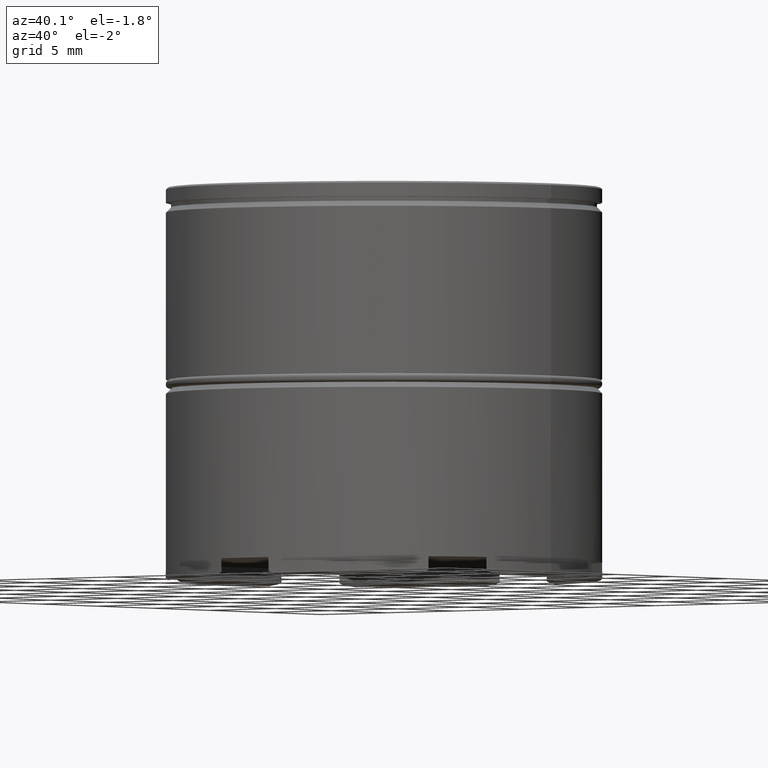
[diagram: clean part render]
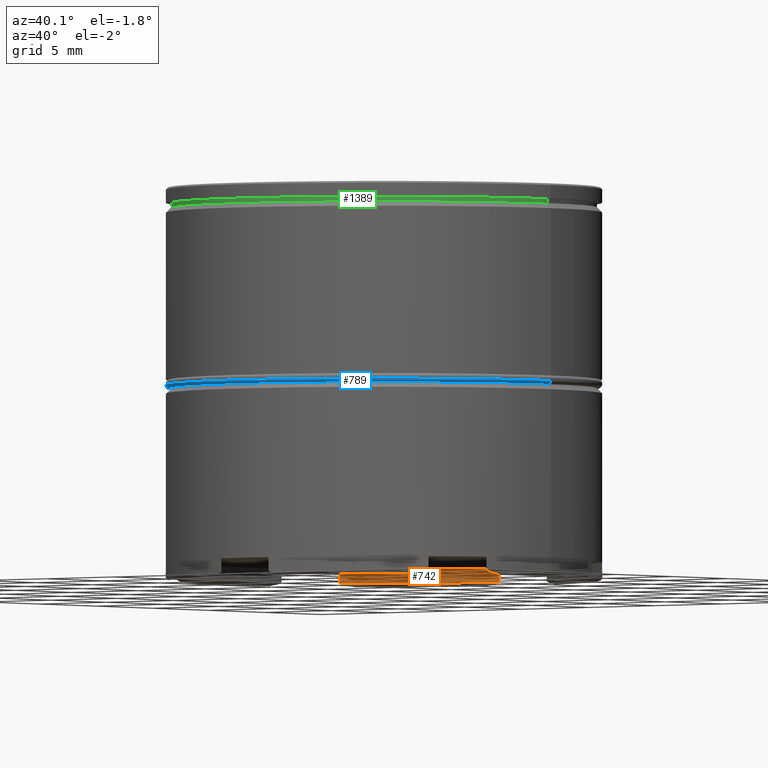
[diagram: same view with three faces highlighted in distinct colors, each labeled with its STEP entity id]
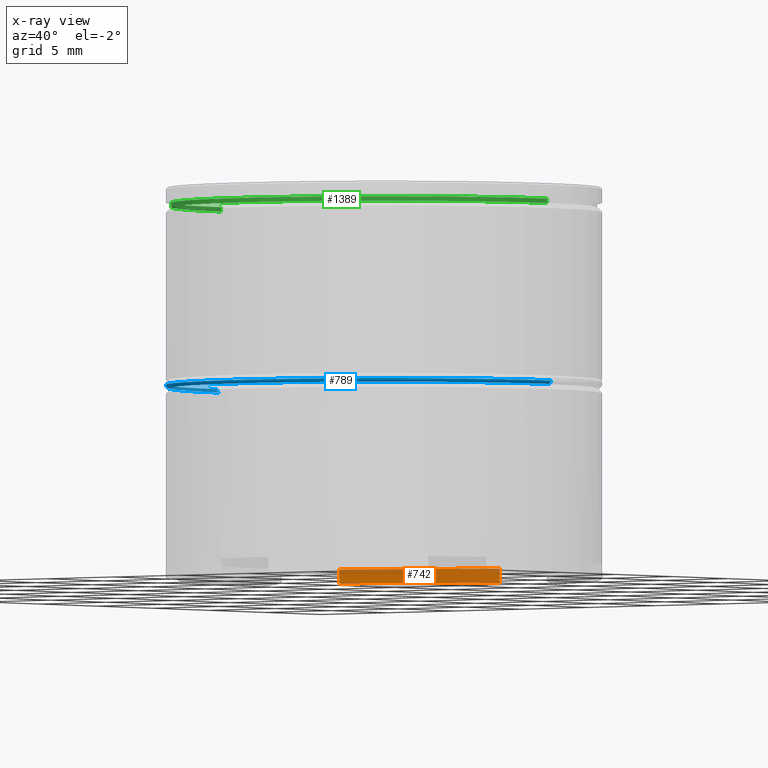
[diagram: x-ray of the same camera — body ghosted, the three highlighted faces saturated]
A machine part, auxiliary view with three faces highlighted in distinct colors.
The next image is the same camera in x-ray (body ghosted, the three faces saturated) — at least one of them is partly hidden behind the body in this view.
Their STEP definitions:

[orange] entity #742 — the highlighted planar face has unit normal (-0.5, 0.866, 0).
#155 = CARTESIAN_POINT ( 'NONE',  ( -11.60000000000000675, 6.697263122599663276, -21.50000000000000000 ) ) ;
#255 = VERTEX_POINT ( 'NONE', #605 ) ;
#281 = CARTESIAN_POINT ( 'NONE',  ( -9.833298897924620974, 7.717268479460495101, 0.000000000000000000 ) ) ;
#359 = CARTESIAN_POINT ( 'NONE',  ( -1.766701102075377561, 12.37452088833849295, 0.000000000000000000 ) ) ;
#436 = CARTESIAN_POINT ( 'NONE',  ( -1.766701102075377561, 12.37452088833849295, -21.50000000000000000 ) ) ;
#460 = VECTOR ( 'NONE', #1179, 1000.000000000000000 ) ;
#468 = PLANE ( 'NONE',  #1329 ) ;
#505 = EDGE_CURVE ( 'NONE', #255, #1462, #1492, .T. ) ;
#566 = VECTOR ( 'NONE', #866, 1000.000000000000000 ) ;
#585 = CARTESIAN_POINT ( 'NONE',  ( -11.60000000000000675, 6.697263122599663276, -21.50000000000000000 ) ) ;
#605 = CARTESIAN_POINT ( 'NONE',  ( -1.766701102075377561, 12.37452088833849295, -22.29999999999999361 ) ) ;
#647 = ORIENTED_EDGE ( 'NONE', *, *, #798, .F. ) ;
#673 = VECTOR ( 'NONE', #1039, 1000.000000000000000 ) ;
#682 = EDGE_LOOP ( 'NONE', ( #819, #972, #1353, #647 ) ) ;
#742 = ADVANCED_FACE ( 'NONE', ( #982 ), #468, .F. ) ;
#798 = EDGE_CURVE ( 'NONE', #1340, #1462, #989, .T. ) ;
#814 = EDGE_CURVE ( 'NONE', #1340, #1302, #1569, .T. ) ;
#819 = ORIENTED_EDGE ( 'NONE', *, *, #814, .T. ) ;
#866 = DIRECTION ( 'NONE',  ( -0.000000000000000000, -0.000000000000000000, 1.000000000000000000 ) ) ;
#892 = CARTESIAN_POINT ( 'NONE',  ( -9.833298897924620974, 7.717268479460495101, -21.50000000000000000 ) ) ;
#972 = ORIENTED_EDGE ( 'NONE', *, *, #1207, .T. ) ;
#980 = LINE ( 'NONE', #1097, #1047 ) ;
#982 = FACE_OUTER_BOUND ( 'NONE', #682, .T. ) ;
#989 = LINE ( 'NONE', #155, #460 ) ;
#1039 = DIRECTION ( 'NONE',  ( 0.000000000000000000, 0.000000000000000000, -1.000000000000000000 ) ) ;
#1047 = VECTOR ( 'NONE', #1115, 1000.000000000000000 ) ;
#1097 = CARTESIAN_POINT ( 'NONE',  ( -2.005266807797945638, 12.23678491392015566, -22.29999999999999361 ) ) ;
#1115 = DIRECTION ( 'NONE',  ( 0.8660254037844388186, 0.4999999999999996669, 0.000000000000000000 ) ) ;
#1179 = DIRECTION ( 'NONE',  ( 0.8660254037844388186, 0.4999999999999997224, 0.000000000000000000 ) ) ;
#1207 = EDGE_CURVE ( 'NONE', #1302, #255, #980, .T. ) ;
#1302 = VERTEX_POINT ( 'NONE', #1393 ) ;
#1329 = AXIS2_PLACEMENT_3D ( 'NONE', #585, #1333, #1350 ) ;
#1333 = DIRECTION ( 'NONE',  ( -0.4999999999999996669, 0.8660254037844388186, 0.000000000000000000 ) ) ;
#1340 = VERTEX_POINT ( 'NONE', #892 ) ;
#1350 = DIRECTION ( 'NONE',  ( -0.8660254037844388186, -0.4999999999999996669, 0.000000000000000000 ) ) ;
#1353 = ORIENTED_EDGE ( 'NONE', *, *, #505, .T. ) ;
#1393 = CARTESIAN_POINT ( 'NONE',  ( -9.833298897924620974, 7.717268479460495101, -22.29999999999999361 ) ) ;
#1462 = VERTEX_POINT ( 'NONE', #436 ) ;
#1492 = LINE ( 'NONE', #359, #566 ) ;
#1569 = LINE ( 'NONE', #281, #673 ) ;

[blue] entity #789 — the highlighted toroidal blend (fillet) surface has major radius 12.3 mm and minor (blend) radius 0.2 mm.
#77 = CARTESIAN_POINT ( 'NONE',  ( 0.000000000000000000, 0.000000000000000000, -11.29999999999999716 ) ) ;
#96 = AXIS2_PLACEMENT_3D ( 'NONE', #1341, #995, #1354 ) ;
#100 = AXIS2_PLACEMENT_3D ( 'NONE', #587, #720, #1327 ) ;
#119 = CIRCLE ( 'NONE', #1601, 0.2000000000000005107 ) ;
#147 = DIRECTION ( 'NONE',  ( 0.000000000000000000, 0.000000000000000000, -1.000000000000000000 ) ) ;
#224 = CARTESIAN_POINT ( 'NONE',  ( 0.000000000000000000, 0.000000000000000000, -11.29999999999999716 ) ) ;
#298 = DIRECTION ( 'NONE',  ( 1.000000000000000000, 0.000000000000000000, 0.000000000000000000 ) ) ;
#312 = CARTESIAN_POINT ( 'NONE',  ( 12.30000000000000071, 0.000000000000000000, -11.49999999999999822 ) ) ;
#482 = VERTEX_POINT ( 'NONE', #492 ) ;
#492 = CARTESIAN_POINT ( 'NONE',  ( 12.50000000000000000, 0.000000000000000000, -11.29999999999999716 ) ) ;
#538 = AXIS2_PLACEMENT_3D ( 'NONE', #224, #551, #298 ) ;
#551 = DIRECTION ( 'NONE',  ( 0.000000000000000000, 0.000000000000000000, 1.000000000000000000 ) ) ;
#572 = CIRCLE ( 'NONE', #96, 0.2000000000000005107 ) ;
#582 = DIRECTION ( 'NONE',  ( 1.000000000000000000, 0.000000000000000000, 0.000000000000000000 ) ) ;
#587 = CARTESIAN_POINT ( 'NONE',  ( 0.000000000000000000, 0.000000000000000000, -11.49999999999999822 ) ) ;
#720 = DIRECTION ( 'NONE',  ( -0.000000000000000000, -0.000000000000000000, -1.000000000000000000 ) ) ;
#729 = ORIENTED_EDGE ( 'NONE', *, *, #1101, .F. ) ;
#789 = ADVANCED_FACE ( 'NONE', ( #1619 ), #1041, .T. ) ;
#816 = CARTESIAN_POINT ( 'NONE',  ( -12.30000000000000071, 1.518562030942717967E-15, -11.49999999999999822 ) ) ;
#829 = VERTEX_POINT ( 'NONE', #816 ) ;
#877 = ORIENTED_EDGE ( 'NONE', *, *, #881, .T. ) ;
#881 = EDGE_CURVE ( 'NONE', #1071, #482, #119, .T. ) ;
#934 = ORIENTED_EDGE ( 'NONE', *, *, #1079, .F. ) ;
#995 = DIRECTION ( 'NONE',  ( 1.224646799147353207E-16, 1.000000000000000000, -0.000000000000000000 ) ) ;
#1041 = TOROIDAL_SURFACE ( 'NONE', #538, 12.30000000000000071, 0.2000000000000000111 ) ;
#1071 = VERTEX_POINT ( 'NONE', #312 ) ;
#1079 = EDGE_CURVE ( 'NONE', #1279, #482, #1491, .T. ) ;
#1101 = EDGE_CURVE ( 'NONE', #829, #1279, #572, .T. ) ;
#1279 = VERTEX_POINT ( 'NONE', #1534 ) ;
#1309 = CIRCLE ( 'NONE', #100, 12.30000000000000071 ) ;
#1327 = DIRECTION ( 'NONE',  ( 1.000000000000000000, 0.000000000000000000, 0.000000000000000000 ) ) ;
#1341 = CARTESIAN_POINT ( 'NONE',  ( -12.30000000000000071, 1.506315562951244413E-15, -11.29999999999999716 ) ) ;
#1354 = DIRECTION ( 'NONE',  ( -1.000000000000000000, 1.224646799147353207E-16, 0.000000000000000000 ) ) ;
#1474 = EDGE_LOOP ( 'NONE', ( #729, #1618, #877, #934 ) ) ;
#1491 = CIRCLE ( 'NONE', #1577, 12.50000000000000000 ) ;
#1534 = CARTESIAN_POINT ( 'NONE',  ( -12.50000000000000000, 1.530808498934191521E-15, -11.29999999999999716 ) ) ;
#1541 = DIRECTION ( 'NONE',  ( 0.000000000000000000, -1.000000000000000000, 0.000000000000000000 ) ) ;
#1552 = CARTESIAN_POINT ( 'NONE',  ( 12.30000000000000071, 0.000000000000000000, -11.29999999999999716 ) ) ;
#1559 = EDGE_CURVE ( 'NONE', #1071, #829, #1309, .T. ) ;
#1575 = DIRECTION ( 'NONE',  ( 0.000000000000000000, 0.000000000000000000, 1.000000000000000000 ) ) ;
#1577 = AXIS2_PLACEMENT_3D ( 'NONE', #77, #1575, #582 ) ;
#1601 = AXIS2_PLACEMENT_3D ( 'NONE', #1552, #1541, #147 ) ;
#1618 = ORIENTED_EDGE ( 'NONE', *, *, #1559, .F. ) ;
#1619 = FACE_OUTER_BOUND ( 'NONE', #1474, .T. ) ;

[green] entity #1389 — the highlighted cylindrical surface (partial cylindrical patch) has radius 12.2 mm, axis along (-0, -0, 1).
#15 = AXIS2_PLACEMENT_3D ( 'NONE', #47, #291, #915 ) ;
#42 = CIRCLE ( 'NONE', #576, 12.20000000000000107 ) ;
#47 = CARTESIAN_POINT ( 'NONE',  ( 0.000000000000000000, 0.000000000000000000, 0.000000000000000000 ) ) ;
#70 = VERTEX_POINT ( 'NONE', #1407 ) ;
#75 = DIRECTION ( 'NONE',  ( -0.000000000000000000, -0.000000000000000000, 1.000000000000000000 ) ) ;
#189 = LINE ( 'NONE', #1304, #1076 ) ;
#218 = DIRECTION ( 'NONE',  ( 1.000000000000000000, 0.000000000000000000, 0.000000000000000000 ) ) ;
#236 = ORIENTED_EDGE ( 'NONE', *, *, #1458, .T. ) ;
#291 = DIRECTION ( 'NONE',  ( -0.000000000000000000, -0.000000000000000000, 1.000000000000000000 ) ) ;
#342 = CARTESIAN_POINT ( 'NONE',  ( 0.000000000000000000, 0.000000000000000000, -1.125000000000000222 ) ) ;
#362 = AXIS2_PLACEMENT_3D ( 'NONE', #1118, #75, #977 ) ;
#446 = FACE_OUTER_BOUND ( 'NONE', #1615, .T. ) ;
#457 = ORIENTED_EDGE ( 'NONE', *, *, #1612, .F. ) ;
#478 = CARTESIAN_POINT ( 'NONE',  ( 12.20000000000000107, 0.000000000000000000, -0.8749999999999998890 ) ) ;
#536 = ORIENTED_EDGE ( 'NONE', *, *, #965, .F. ) ;
#548 = VERTEX_POINT ( 'NONE', #1429 ) ;
#553 = LINE ( 'NONE', #1554, #1441 ) ;
#564 = DIRECTION ( 'NONE',  ( -0.000000000000000000, -0.000000000000000000, 1.000000000000000000 ) ) ;
#576 = AXIS2_PLACEMENT_3D ( 'NONE', #342, #1352, #218 ) ;
#826 = DIRECTION ( 'NONE',  ( -0.000000000000000000, -0.000000000000000000, 1.000000000000000000 ) ) ;
#915 = DIRECTION ( 'NONE',  ( 1.000000000000000000, 0.000000000000000000, 0.000000000000000000 ) ) ;
#965 = EDGE_CURVE ( 'NONE', #70, #548, #189, .T. ) ;
#977 = DIRECTION ( 'NONE',  ( 1.000000000000000000, 0.000000000000000000, 0.000000000000000000 ) ) ;
#1076 = VECTOR ( 'NONE', #564, 1000.000000000000000 ) ;
#1078 = CYLINDRICAL_SURFACE ( 'NONE', #15, 12.20000000000000107 ) ;
#1082 = CIRCLE ( 'NONE', #362, 12.20000000000000107 ) ;
#1091 = ORIENTED_EDGE ( 'NONE', *, *, #1623, .T. ) ;
#1118 = CARTESIAN_POINT ( 'NONE',  ( 0.000000000000000000, 0.000000000000000000, -0.8749999999999998890 ) ) ;
#1183 = VERTEX_POINT ( 'NONE', #1371 ) ;
#1304 = CARTESIAN_POINT ( 'NONE',  ( -12.20000000000000107, 1.494069094959771056E-15, 0.000000000000000000 ) ) ;
#1352 = DIRECTION ( 'NONE',  ( -0.000000000000000000, -0.000000000000000000, 1.000000000000000000 ) ) ;
#1371 = CARTESIAN_POINT ( 'NONE',  ( 12.20000000000000107, 0.000000000000000000, -1.125000000000000222 ) ) ;
#1389 = ADVANCED_FACE ( 'NONE', ( #446 ), #1078, .T. ) ;
#1407 = CARTESIAN_POINT ( 'NONE',  ( -12.20000000000000107, 1.494069094959771056E-15, -1.125000000000000222 ) ) ;
#1429 = CARTESIAN_POINT ( 'NONE',  ( -12.20000000000000107, 1.494069094959771056E-15, -0.8749999999999998890 ) ) ;
#1441 = VECTOR ( 'NONE', #826, 1000.000000000000000 ) ;
#1458 = EDGE_CURVE ( 'NONE', #1183, #1548, #553, .T. ) ;
#1548 = VERTEX_POINT ( 'NONE', #478 ) ;
#1554 = CARTESIAN_POINT ( 'NONE',  ( 12.20000000000000107, 0.000000000000000000, 0.000000000000000000 ) ) ;
#1612 = EDGE_CURVE ( 'NONE', #548, #1548, #1082, .T. ) ;
#1615 = EDGE_LOOP ( 'NONE', ( #536, #1091, #236, #457 ) ) ;
#1623 = EDGE_CURVE ( 'NONE', #70, #1183, #42, .T. ) ;